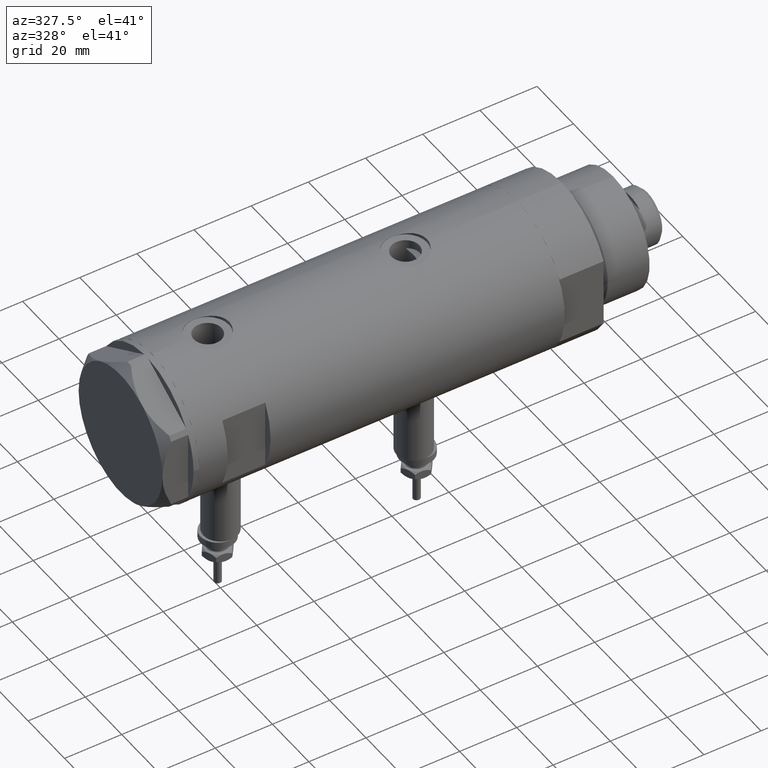
[diagram: clean part render]
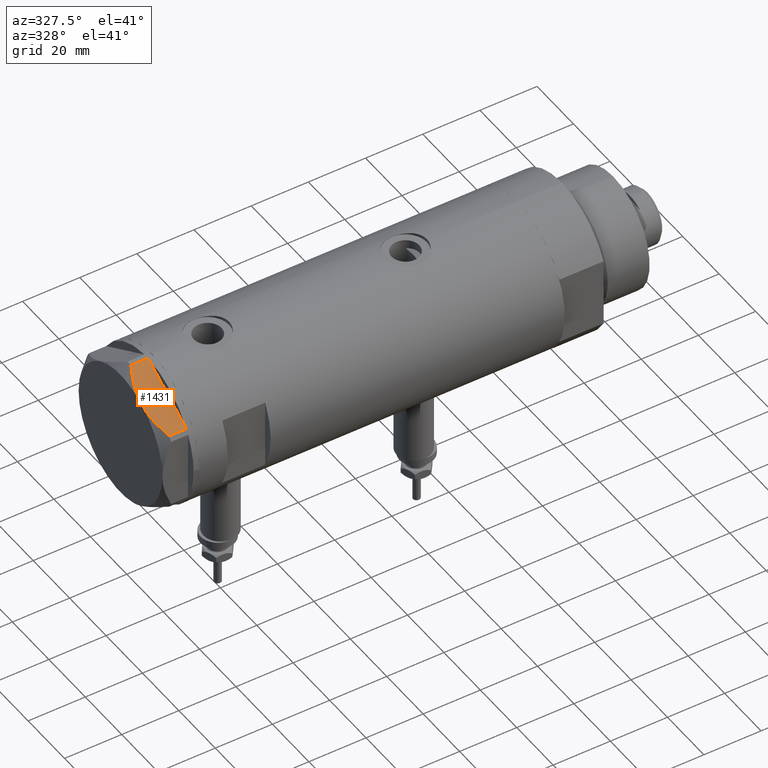
[diagram: same view with one face highlighted and labeled with its STEP entity id]
A machine part, auxiliary view. The second image highlights one B-rep face of the part: STEP entity #1431.
In plain terms, the highlighted planar face has unit normal (-0, 0.5, -0.866).
Its self-contained STEP definition (entity closure, byte-faithful):
#114 = CARTESIAN_POINT ( 'NONE',  ( -22.99999999999990408, -13.27905619136147841, 0.000000000000000000 ) ) ;
#335 = EDGE_CURVE ( 'NONE', #3277, #945, #6206, .T. ) ;
#354 = LINE ( 'NONE', #927, #1681 ) ;
#418 = CARTESIAN_POINT ( 'NONE',  ( -5.671686373603866294, -23.28356272816335348, 8.040681765829727823 ) ) ;
#480 = PLANE ( 'NONE',  #917 ) ;
#902 = VERTEX_POINT ( 'NONE', #5175 ) ;
#908 = CARTESIAN_POINT ( 'NONE',  ( -22.99999999999990408, -13.27905619136147841, 0.000000000000000000 ) ) ;
#917 = AXIS2_PLACEMENT_3D ( 'NONE', #5822, #3354, #6307 ) ;
#927 = CARTESIAN_POINT ( 'NONE',  ( -22.03005154776132102, -13.83905619136147536, 9.000000000000000000 ) ) ;
#934 = ORIENTED_EDGE ( 'NONE', *, *, #1046, .T. ) ;
#941 = CARTESIAN_POINT ( 'NONE',  ( -7.884645426990268824, -22.00591022298511490, 8.707651728477127762 ) ) ;
#945 = VERTEX_POINT ( 'NONE', #2415 ) ;
#1046 = EDGE_CURVE ( 'NONE', #3269, #1149, #5432, .T. ) ;
#1149 = VERTEX_POINT ( 'NONE', #6096 ) ;
#1197 = CARTESIAN_POINT ( 'NONE',  ( -20.37350567916426058, -14.79546339452094017, 6.877782426143456362 ) ) ;
#1266 = VECTOR ( 'NONE', #5684, 1000.000000000000000 ) ;
#1318 = VECTOR ( 'NONE', #4328, 1000.000000000000000 ) ;
#1364 = VECTOR ( 'NONE', #1742, 1000.000000000000000 ) ;
#1431 = ADVANCED_FACE ( 'NONE', ( #5854 ), #480, .F. ) ;
#1453 = CARTESIAN_POINT ( 'NONE',  ( -2.640413878808339110, -25.03366871902064261, 6.844201024439214187 ) ) ;
#1657 = ORIENTED_EDGE ( 'NONE', *, *, #2747, .T. ) ;
#1681 = VECTOR ( 'NONE', #3286, 1000.000000000000000 ) ;
#1742 = DIRECTION ( 'NONE',  ( 0.8660254037844415942, -0.4999999999999950595, 0.000000000000000000 ) ) ;
#2241 = LINE ( 'NONE', #114, #1364 ) ;
#2281 = CARTESIAN_POINT ( 'NONE',  ( -0.9699484522383977625, -25.99811238272274494, 9.000000000000000000 ) ) ;
#2415 = CARTESIAN_POINT ( 'NONE',  ( -11.49999999999990585, -19.91858428704219364, 9.000000000000000000 ) ) ;
#2452 = VERTEX_POINT ( 'NONE', #6101 ) ;
#2622 = CARTESIAN_POINT ( 'NONE',  ( -13.34348161667001698, -18.85424967941148822, 8.907842277728438063 ) ) ;
#2717 = CARTESIAN_POINT ( 'NONE',  ( -22.03005154776146313, -13.83905619136139364, 5.983800287807550689 ) ) ;
#2722 = DIRECTION ( 'NONE',  ( 0.8660254037844415942, -0.4999999999999950595, 0.000000000000000000 ) ) ;
#2747 = EDGE_CURVE ( 'NONE', #2452, #3278, #5281, .T. ) ;
#2851 = CARTESIAN_POINT ( 'NONE',  ( -11.49999999999990585, -19.91858428704219364, 9.000000000000000000 ) ) ;
#2923 = CARTESIAN_POINT ( 'NONE',  ( -1.799196345398571983, -25.51934588838179607, 6.431317509510369845 ) ) ;
#3021 = ORIENTED_EDGE ( 'NONE', *, *, #5722, .T. ) ;
#3103 = CARTESIAN_POINT ( 'NONE',  ( -15.16323225988328538, -17.80361615569431777, 8.637313967156948991 ) ) ;
#3157 = EDGE_LOOP ( 'NONE', ( #6269, #3021, #1657, #5029, #934, #6245, #4968 ) ) ;
#3175 = CARTESIAN_POINT ( 'NONE',  ( -22.03005154776146313, -13.83905619136139364, 5.983800287807550689 ) ) ;
#3269 = VERTEX_POINT ( 'NONE', #5970 ) ;
#3277 = VERTEX_POINT ( 'NONE', #3175 ) ;
#3278 = VERTEX_POINT ( 'NONE', #5123 ) ;
#3286 = DIRECTION ( 'NONE',  ( -0.000000000000000000, 0.000000000000000000, -1.000000000000000000 ) ) ;
#3354 = DIRECTION ( 'NONE',  ( 0.4999999999999950595, 0.8660254037844415942, -0.000000000000000000 ) ) ;
#3389 = CARTESIAN_POINT ( 'NONE',  ( -0.9699484522404678843, -25.99811238272155123, 5.983800287808756835 ) ) ;
#3716 = LINE ( 'NONE', #2281, #1266 ) ;
#3790 = VECTOR ( 'NONE', #2722, 1000.000000000000000 ) ;
#4174 = CARTESIAN_POINT ( 'NONE',  ( -12.41906678023023325, -19.38796083407287085, 8.981686407609506873 ) ) ;
#4328 = DIRECTION ( 'NONE',  ( 0.8660254037844415942, -0.4999999999999950595, 0.000000000000000000 ) ) ;
#4385 = EDGE_CURVE ( 'NONE', #3278, #3269, #2241, .T. ) ;
#4552 = EDGE_CURVE ( 'NONE', #945, #902, #6287, .T. ) ;
#4561 = CARTESIAN_POINT ( 'NONE',  ( -11.49999999999990585, -19.91858428704219364, 9.000000000000000000 ) ) ;
#4649 = CARTESIAN_POINT ( 'NONE',  ( -16.05322244309625290, -17.28978008384019915, 8.426899937603781865 ) ) ;
#4785 = CARTESIAN_POINT ( 'NONE',  ( -9.678244919010385416, -20.97037507344893115, 9.000000000000088818 ) ) ;
#4968 = ORIENTED_EDGE ( 'NONE', *, *, #4552, .F. ) ;
#5029 = ORIENTED_EDGE ( 'NONE', *, *, #4385, .T. ) ;
#5046 = CARTESIAN_POINT ( 'NONE',  ( -13.80210138309694301, -18.58946543380922378, 8.852712638955804181 ) ) ;
#5059 = EDGE_CURVE ( 'NONE', #1149, #902, #3716, .T. ) ;
#5123 = CARTESIAN_POINT ( 'NONE',  ( -21.99999999999998224, -13.85640646055105485, 0.000000000000000000 ) ) ;
#5175 = CARTESIAN_POINT ( 'NONE',  ( -0.9699484522404678843, -25.99811238272155123, 5.983800287808756835 ) ) ;
#5281 = LINE ( 'NONE', #908, #3790 ) ;
#5310 = CARTESIAN_POINT ( 'NONE',  ( -22.99999999999990408, -13.27905619136147841, 0.000000000000000000 ) ) ;
#5432 = LINE ( 'NONE', #5310, #1318 ) ;
#5609 = CARTESIAN_POINT ( 'NONE',  ( -18.67981377008999644, -15.77331687414923778, 7.629374868826104716 ) ) ;
#5684 = DIRECTION ( 'NONE',  ( 0.000000000000000000, 0.000000000000000000, 1.000000000000000000 ) ) ;
#5722 = EDGE_CURVE ( 'NONE', #3277, #2452, #354, .T. ) ;
#5797 = CARTESIAN_POINT ( 'NONE',  ( -5.229981517799206614, -23.53858114556453529, 7.892128867758890998 ) ) ;
#5822 = CARTESIAN_POINT ( 'NONE',  ( -22.99999999999990408, -13.27905619136147841, 9.000000000000000000 ) ) ;
#5829 = CARTESIAN_POINT ( 'NONE',  ( -3.925137811031424562, -24.29193301091729396, 7.397272853992039821 ) ) ;
#5854 = FACE_OUTER_BOUND ( 'NONE', #3157, .T. ) ;
#5970 = CARTESIAN_POINT ( 'NONE',  ( -0.9999999999997406519, -25.98076211353317433, 0.000000000000000000 ) ) ;
#6091 = CARTESIAN_POINT ( 'NONE',  ( -11.95865151389046588, -19.65378171203314395, 9.000000000000095923 ) ) ;
#6096 = CARTESIAN_POINT ( 'NONE',  ( -0.9699484522383943208, -25.99811238272274494, 0.000000000000000000 ) ) ;
#6101 = CARTESIAN_POINT ( 'NONE',  ( -22.03005154776132102, -13.83905619136147536, 0.000000000000000000 ) ) ;
#6206 = B_SPLINE_CURVE_WITH_KNOTS ( 'NONE', 3,
 ( #2717, #1197, #5609, #4649, #3103, #5046, #2622, #4174, #6091, #4561 ),
 .UNSPECIFIED., .F., .F.,
 ( 4, 2, 2, 2, 4 ),
 ( 0.001228959670438514989, 0.007497079744270818830, 0.01063113978118697227, 0.01219816979964504812, 0.01376519981810312397 ),
 .UNSPECIFIED. ) ;
#6245 = ORIENTED_EDGE ( 'NONE', *, *, #5059, .T. ) ;
#6269 = ORIENTED_EDGE ( 'NONE', *, *, #335, .F. ) ;
#6287 = B_SPLINE_CURVE_WITH_KNOTS ( 'NONE', 3,
 ( #2851, #4785, #941, #418, #5797, #6316, #5829, #1453, #2923, #3389 ),
 .UNSPECIFIED., .F., .F.,
 ( 4, 2, 2, 2, 4 ),
 ( 0.01376519981810312397, 0.01998941321701459134, 0.02154546656674245428, 0.02310151991647032069, 0.02621362661592604310 ),
 .UNSPECIFIED. ) ;
#6307 = DIRECTION ( 'NONE',  ( -0.8660254037844414832, 0.4999999999999950040, 0.000000000000000000 ) ) ;
#6316 = CARTESIAN_POINT ( 'NONE',  ( -4.357207709417335373, -24.04247733877546267, 7.570552255230290406 ) ) ;